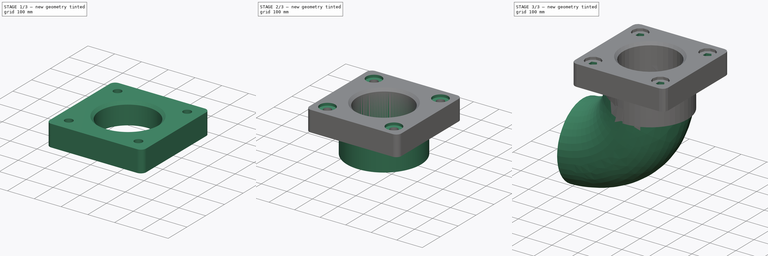
[diagram: build sequence overview — one tinted view per stage of 3, left to right]
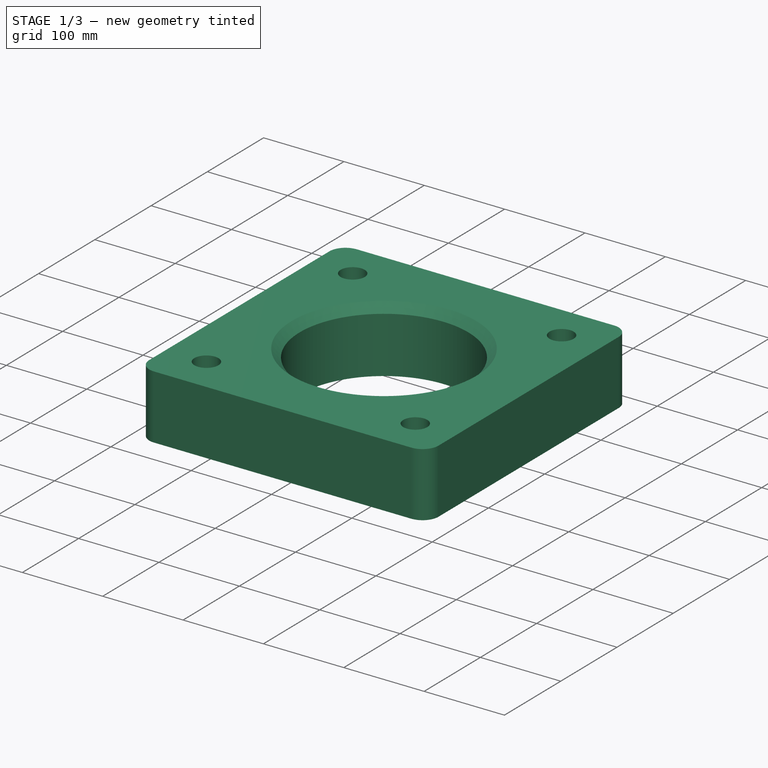
[diagram: stage 1 of 3 — iso view after this stage's code; geometry added in this stage tinted green]
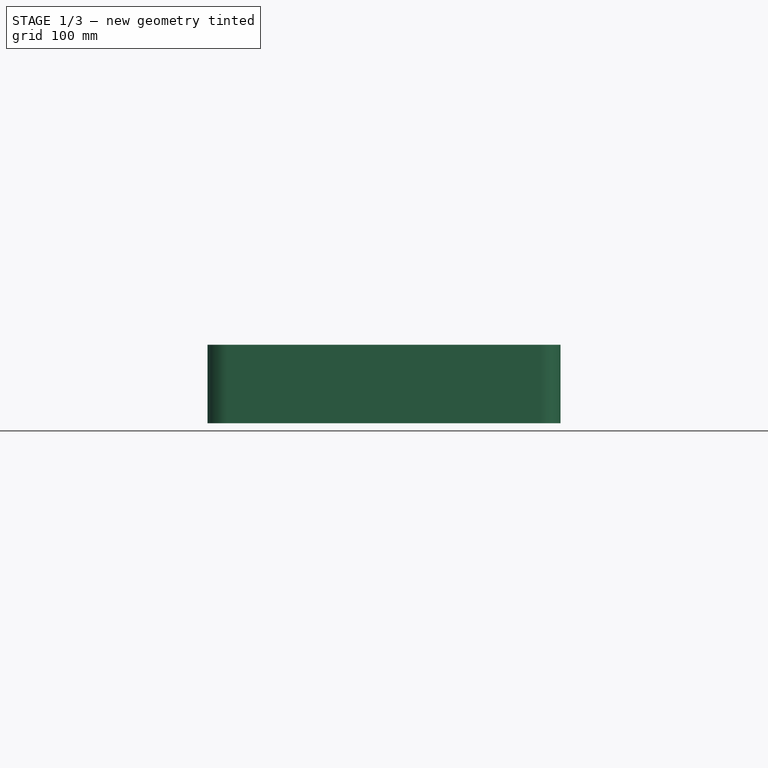
[diagram: stage 1 of 3 — front view after this stage's code; geometry added in this stage tinted green]
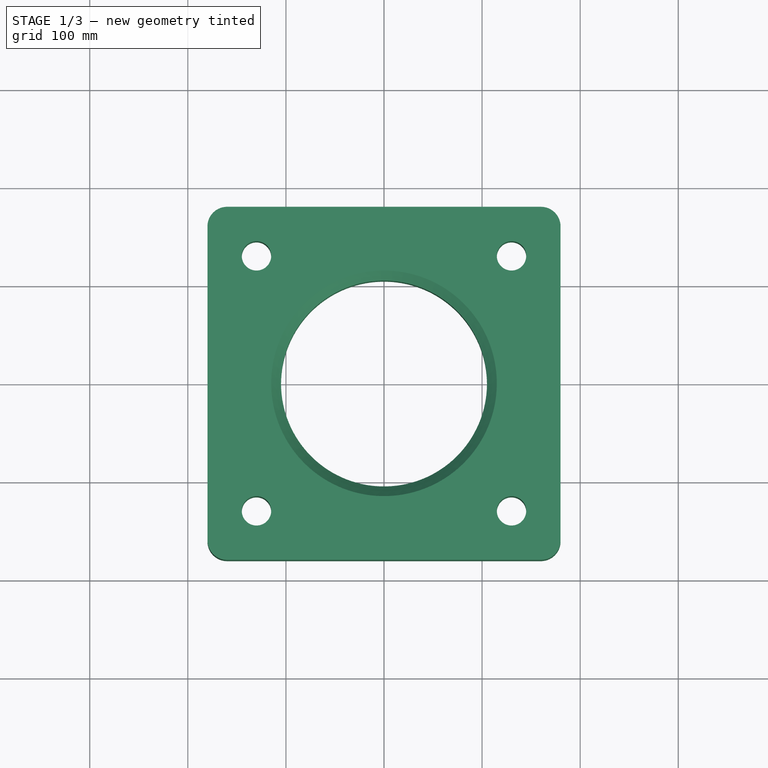
[diagram: stage 1 of 3 — top view after this stage's code; geometry added in this stage tinted green]
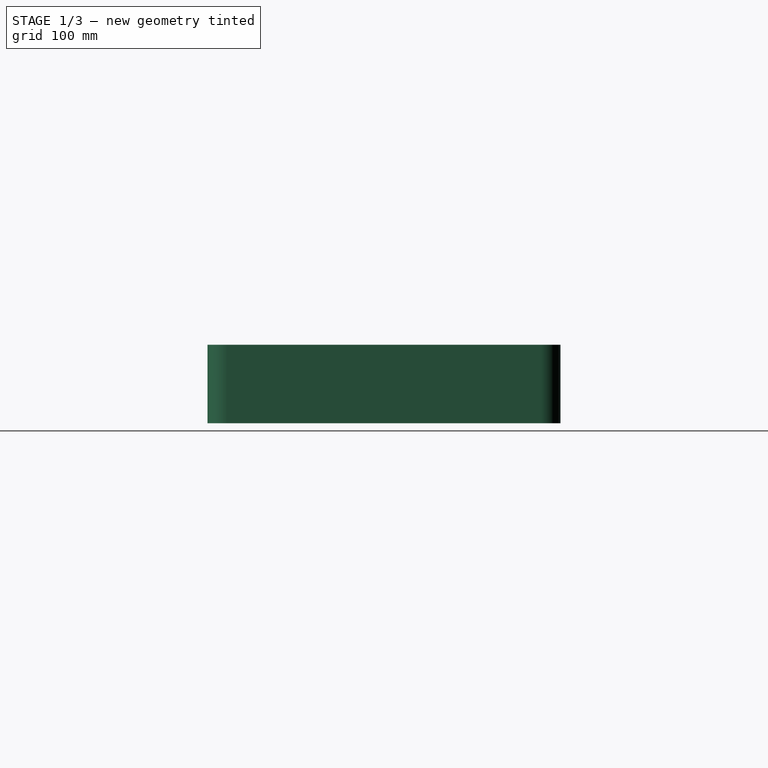
[diagram: stage 1 of 3 — right view after this stage's code; geometry added in this stage tinted green]
FCSTD DOCUMENT  (FreeCAD 1.0R39109 (Git))
Label: pieza2
License: All rights reserved
LicenseURL: https://en.wikipedia.org/wiki/All_rights_reserved
objects: Sketcher::SketchObject×7, PartDesign::Body×3, PartDesign::Pad×2, PartDesign::Chamfer×1, PartDesign::Pocket×1, PartDesign::AdditivePipe×1, PartDesign::FeatureBase×1
note: 34 computed .brp shape members not serialized (recipe doc carries the construction recipe); baked Part::Feature solids carry a one-line shape summary decoded from their .brp

FEATURE [Sketcher::SketchObject] Sketch
  ArcFitTolerance = 1e-06
  AttachmentSupport = -> [XY_Plane]
  FullyConstrained = true
  MakeInternals = false
  MapMode = 5
  sketch-geometry (18):
    g0: LineSegment StartX=-160 StartY=-180 StartZ=0 EndX=160 EndY=-180 EndZ=0
    g1: LineSegment StartX=180 StartY=-160 StartZ=0 EndX=180 EndY=160 EndZ=0
    g2: LineSegment StartX=160 StartY=180 StartZ=0 EndX=-160 EndY=180 EndZ=0
    g3: LineSegment StartX=-180 StartY=160 StartZ=0 EndX=-180 EndY=-160 EndZ=0
    g4: GeomPoint [constr] X=0 Y=0 Z=0
    g5: ArcOfCircle CenterX=-160 CenterY=160 CenterZ=0 NormalX=0 NormalY=0 NormalZ=1 AngleXU=0 Radius=20 StartAngle=1.5708 EndAngle=3.14159
    g6: GeomPoint [constr] X=-180 Y=180 Z=0
    g7: ArcOfCircle CenterX=160 CenterY=160 CenterZ=0 NormalX=0 NormalY=0 NormalZ=1 AngleXU=0 Radius=20 StartAngle=4e-16 EndAngle=1.5708
    g8: GeomPoint [constr] X=180 Y=180 Z=0
    g9: ArcOfCircle CenterX=160 CenterY=-160 CenterZ=0 NormalX=0 NormalY=0 NormalZ=1 AngleXU=0 Radius=20 StartAngle=4.71239 EndAngle=6.28319
    g10: GeomPoint [constr] X=180 Y=-180 Z=0
    g11: ArcOfCircle CenterX=-160 CenterY=-160 CenterZ=0 NormalX=0 NormalY=0 NormalZ=1 AngleXU=0 Radius=20 StartAngle=3.14159 EndAngle=4.71239
    g12: GeomPoint [constr] X=-180 Y=-180 Z=0
    g13: Circle CenterX=-130 CenterY=130 CenterZ=0 NormalX=0 NormalY=0 NormalZ=1 AngleXU=0 Radius=15
    g14: Circle CenterX=130 CenterY=130 CenterZ=0 NormalX=0 NormalY=0 NormalZ=1 AngleXU=0 Radius=15
    g15: Circle CenterX=-130 CenterY=-130 CenterZ=0 NormalX=0 NormalY=0 NormalZ=1 AngleXU=0 Radius=15
    g16: Circle CenterX=130 CenterY=-130 CenterZ=0 NormalX=0 NormalY=0 NormalZ=1 AngleXU=0 Radius=15
    g17: Circle CenterX=0 CenterY=0 CenterZ=0 NormalX=0 NormalY=0 NormalZ=1 AngleXU=0 Radius=105
  constraints (42):
    c: Horizontal(g0)
    c: Horizontal(g2)
    c: Vertical(g1)
    c: Vertical(g3)
    c: Symmetric(g8,g12,g4)
    c: Distance(g10,g12) = 360
    c: Distance(g12,g6) = 360
    c: Coincident(g4,g-1)
    c: PointOnObject(g6,g2)
    c: PointOnObject(g6,g3)
    c: Tangent(g2,g5) = -1.5708
    c: Tangent(g3,g5) = -1.5708
    c: Radius(g5) = 20
    c: PointOnObject(g8,g1)
    c: PointOnObject(g8,g2)
    c: Tangent(g1,g7) = -1.5708
    c: Tangent(g2,g7) = -1.5708
    c: Radius(g7) = 20
    c: PointOnObject(g10,g0)
    c: PointOnObject(g10,g1)
    c: Tangent(g0,g9) = -1.5708
    c: Tangent(g1,g9) = -1.5708
    c: Radius(g9) = 20
    c: PointOnObject(g12,g0)
    c: PointOnObject(g12,g3)
    c: Tangent(g0,g11) = -1.5708
    c: Tangent(g3,g11) = -1.5708
    c: Radius(g11) = 20
    c: Diameter(g13) = 30
    c: DistanceY(g13,g6) = 50
    c: DistanceX(g6,g13) = 50
    c: Diameter(g14) = 30
    c: DistanceX(g14,g8) = 50
    c: DistanceY(g14,g8) = 50
    c: DistanceX(g12,g15) = 50
    c: Diameter(g15) = 30
    c: DistanceY(g12,g15) = 50
    c: DistanceY(g10,g16) = 50
    c: DistanceX(g16,g10) = 50
    c: Diameter(g16) = 30
    c: Diameter(g17) = 210
    c: Coincident(g17,g4)
FEATURE [PartDesign::Pad] Pad
  Direction = (0,0,1)
  Length = 80
  Length2 = 10
  Profile = -> Sketch
  ReferenceAxis = -> Sketch [N_Axis]
  Refine = true
  Suppressed = false
  Type = 0
FEATURE [PartDesign::Chamfer] Chamfer
  Angle = 45
  Base = -> Pad [Edge27]
  BaseFeature = -> Pad
  ChamferType = 0
  FlipDirection = false
  Refine = true
  Size = 10
  Size2 = 1
  SupportTransform = false
  Suppressed = false
  UseAllEdges = false
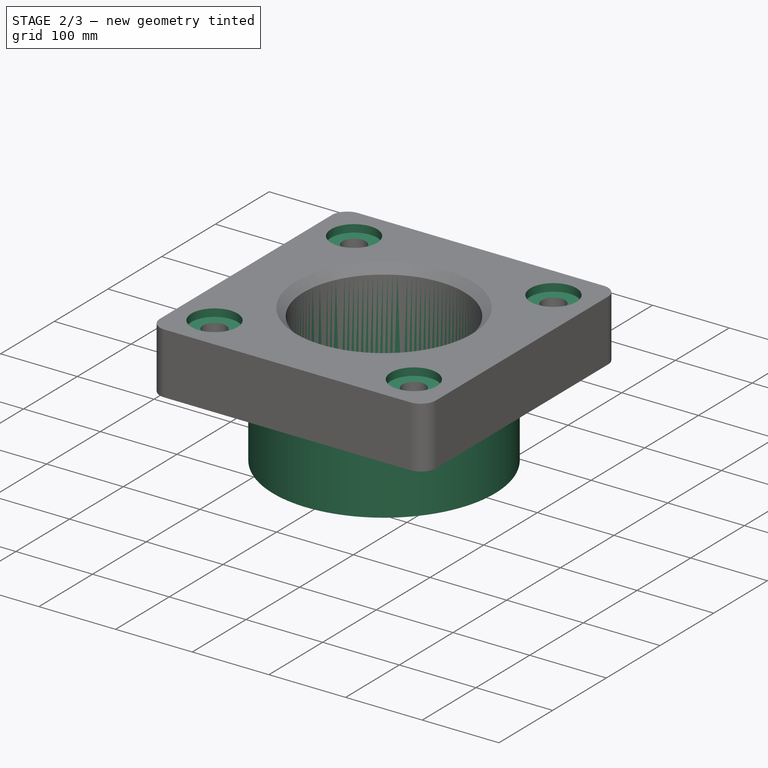
[diagram: stage 2 of 3 — iso view after this stage's code; geometry added in this stage tinted green]
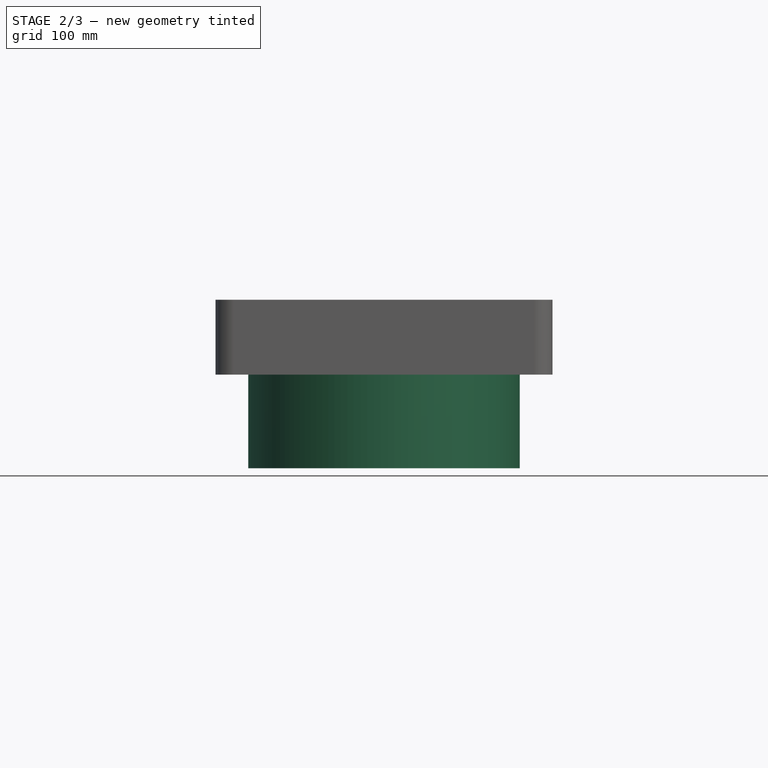
[diagram: stage 2 of 3 — front view after this stage's code; geometry added in this stage tinted green]
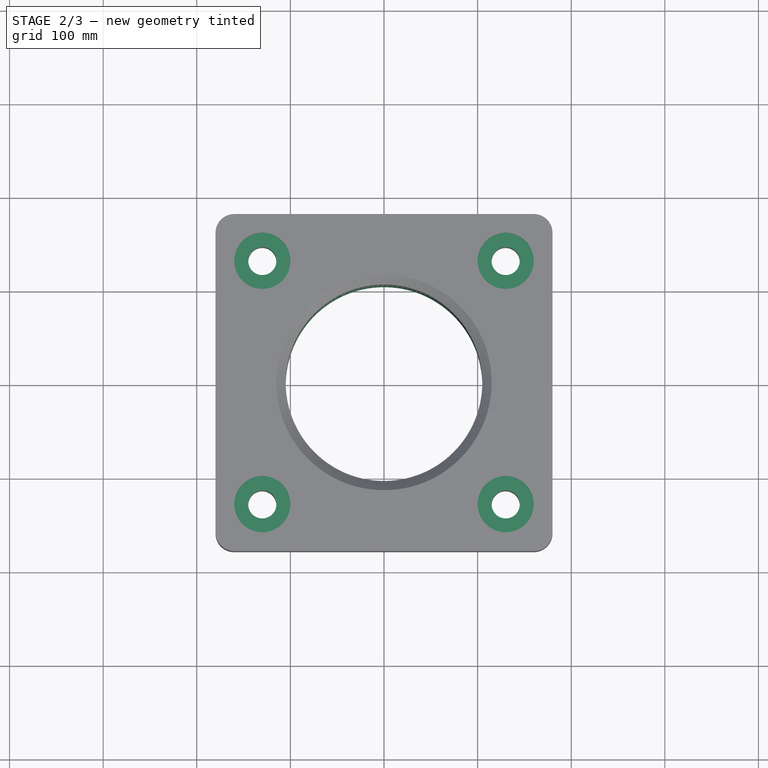
[diagram: stage 2 of 3 — top view after this stage's code; geometry added in this stage tinted green]
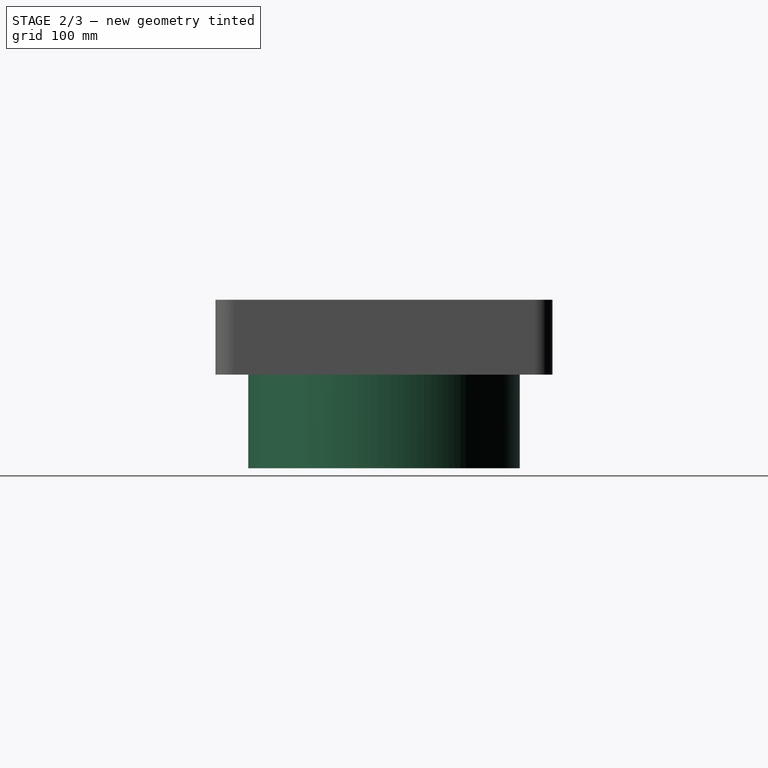
[diagram: stage 2 of 3 — right view after this stage's code; geometry added in this stage tinted green]
FEATURE [Sketcher::SketchObject] Sketch001
  ArcFitTolerance = 1e-06
  AttachmentSupport = -> [Chamfer]
  ExternalGeometry = -> [Chamfer]
  FullyConstrained = true
  MakeInternals = false
  MapMode = 5
  Placement = pos=(0,0,80) rot=(0,0,1;0rad)
FEATURE [Sketcher::SketchObject] Sketch002
  ArcFitTolerance = 1e-06
  AttachmentSupport = -> [Chamfer]
  ExternalGeometry = -> [Chamfer]
  FullyConstrained = true
  MakeInternals = false
  MapMode = 5
  Placement = pos=(0,0,80) rot=(0,0,1;0rad)
  sketch-geometry (4):
    g0: Circle CenterX=-130 CenterY=130 CenterZ=0 NormalX=0 NormalY=0 NormalZ=1 AngleXU=0 Radius=30
    g1: Circle CenterX=130 CenterY=130 CenterZ=0 NormalX=0 NormalY=0 NormalZ=1 AngleXU=0 Radius=30
    g2: Circle CenterX=130 CenterY=-130 CenterZ=0 NormalX=0 NormalY=0 NormalZ=1 AngleXU=0 Radius=30
    g3: Circle CenterX=-130 CenterY=-130 CenterZ=0 NormalX=0 NormalY=0 NormalZ=1 AngleXU=0 Radius=30
  constraints (8):
    c: Diameter(g0) = 60
    c: Coincident(g0,g-3)
    c: Diameter(g1) = 60
    c: Coincident(g1,g-4)
    c: Diameter(g2) = 60
    c: Coincident(g2,g-5)
    c: Diameter(g3) = 60
    c: Coincident(g3,g-6)
FEATURE [PartDesign::Pocket] Pocket
  BaseFeature = -> Chamfer
  Direction = (0,0,-1)
  Length = 10
  Length2 = 5
  Profile = -> Sketch002
  ReferenceAxis = -> Sketch002 [N_Axis]
  Refine = true
  Suppressed = false
  Type = 0
FEATURE [Sketcher::SketchObject] Sketch003
  ArcFitTolerance = 1e-06
  AttachmentSupport = -> [Pocket]
  FullyConstrained = true
  MakeInternals = false
  MapMode = 5
  Placement = pos=(0,0,0) rot=(1,0,0;3.14159rad)
  sketch-geometry (2):
    g0: Circle CenterX=0 CenterY=0 CenterZ=0 NormalX=0 NormalY=0 NormalZ=1 AngleXU=0 Radius=145
    g1: Circle CenterX=0 CenterY=0 CenterZ=0 NormalX=0 NormalY=0 NormalZ=1 AngleXU=0 Radius=105
  constraints (4):
    c: Diameter(g0) = 290
    c: Coincident(g0,g-1)
    c: Diameter(g1) = 210
    c: Coincident(g1,g0)
FEATURE [PartDesign::Pad] Pad001
  BaseFeature = -> Pocket
  Direction = (0,0,-1)
  Length = 100
  Length2 = 10
  Profile = -> Sketch003
  ReferenceAxis = -> Sketch003 [N_Axis]
  Refine = true
  Suppressed = false
  Type = 0
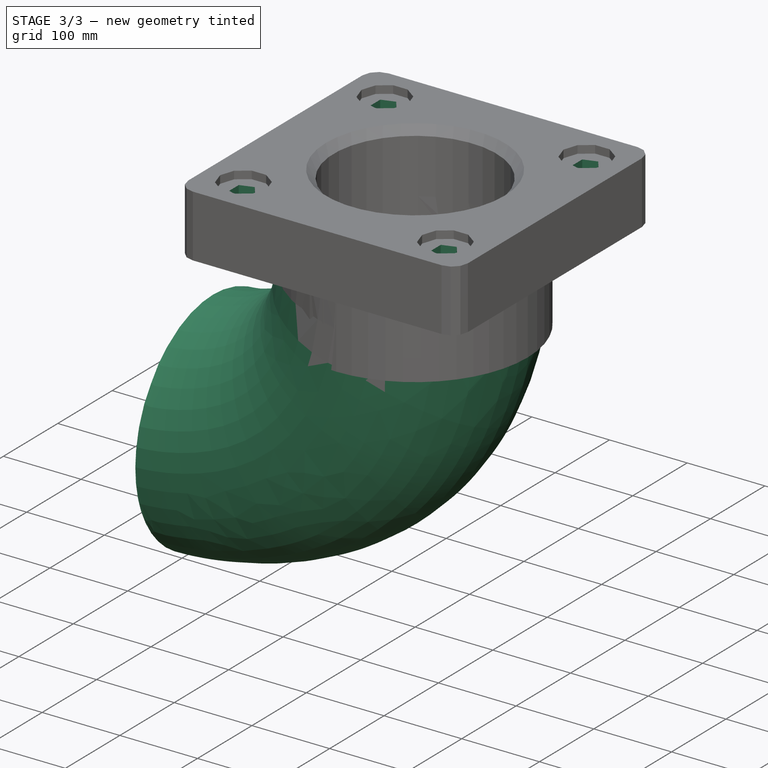
[diagram: stage 3 of 3 — iso view after this stage's code; geometry added in this stage tinted green]
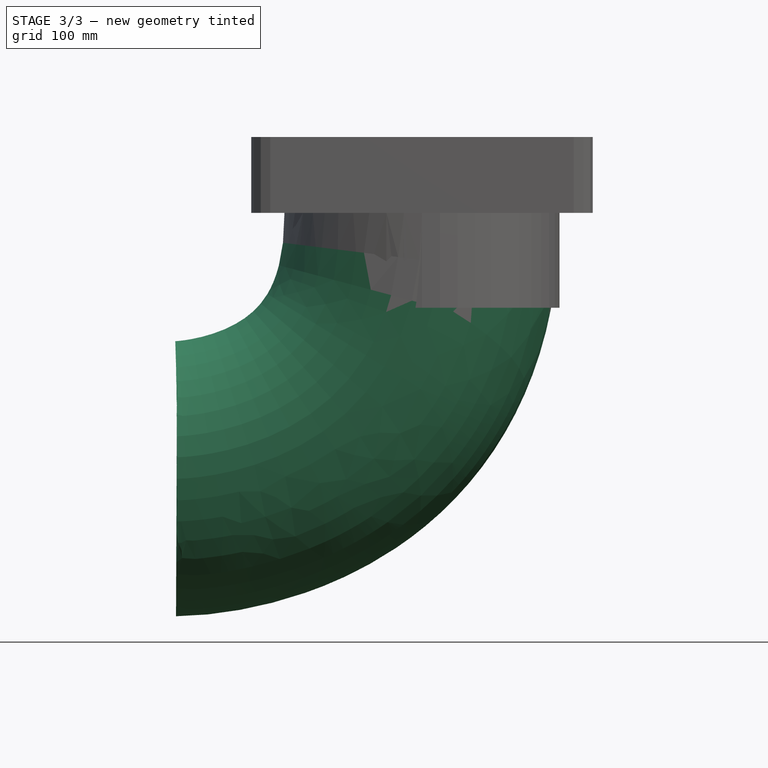
[diagram: stage 3 of 3 — front view after this stage's code; geometry added in this stage tinted green]
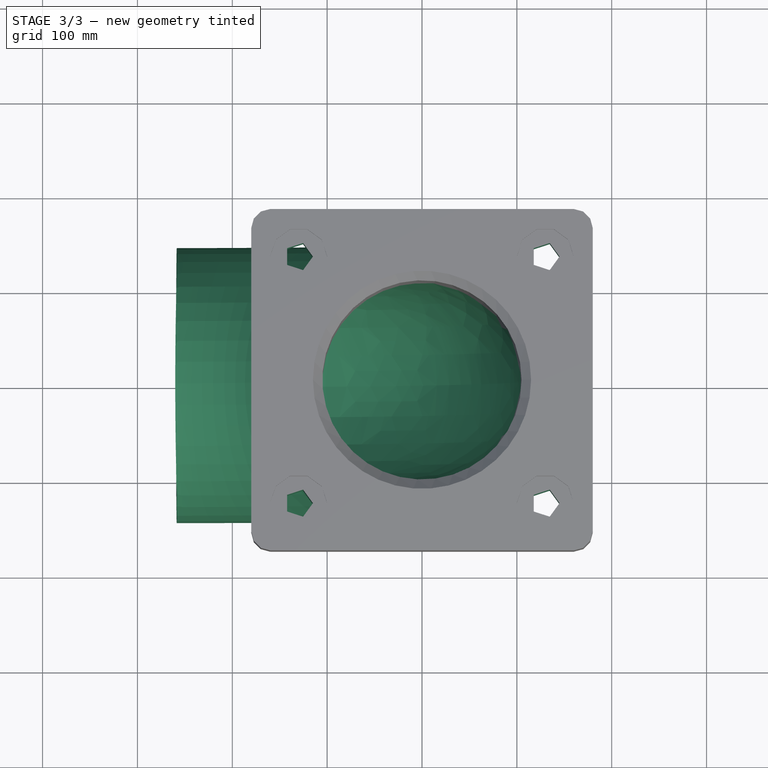
[diagram: stage 3 of 3 — top view after this stage's code; geometry added in this stage tinted green]
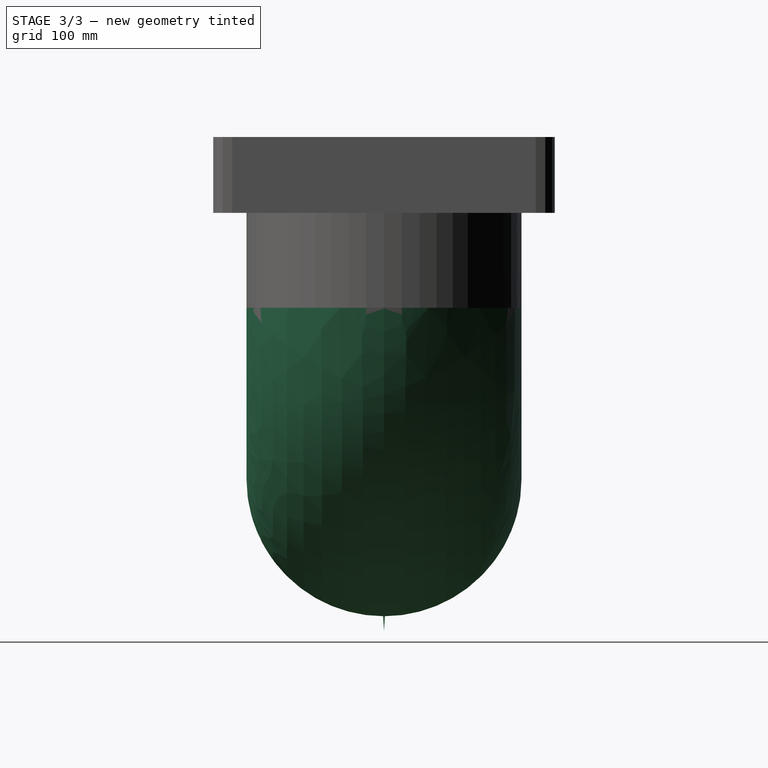
[diagram: stage 3 of 3 — right view after this stage's code; geometry added in this stage tinted green]
FEATURE [Sketcher::SketchObject] Sketch004
  ArcFitTolerance = 1e-06
  AttachmentSupport = -> [Pad001]
  FullyConstrained = true
  MakeInternals = false
  MapMode = 5
  Placement = pos=(0,0,-100) rot=(1,0,0;3.14159rad)
  sketch-geometry (1):
    g0: Circle CenterX=0 CenterY=0 CenterZ=0 NormalX=0 NormalY=0 NormalZ=1 AngleXU=0 Radius=105
  constraints (2):
    c: Diameter(g0) = 210
    c: Coincident(g0,g-1)
FEATURE [PartDesign::Body] Body  label="Cuerpo"
  AllowCompound = false
  Group = -> [Sketch,Pad,Chamfer,Sketch001,Sketch002,Pocket,Sketch003,Pad001,Sketch004]
  Origin = -> Origin
  Tip = -> Pad001
FEATURE [Sketcher::SketchObject] Sketch005
  ArcFitTolerance = 1e-06
  AttachmentSupport = -> [XY_Plane001]
  FullyConstrained = false
  MakeInternals = false
  MapMode = 5
  sketch-geometry (2):
    g0: Circle CenterX=0 CenterY=0 CenterZ=0 NormalX=0 NormalY=0 NormalZ=1 AngleXU=0 Radius=145
    g1: Circle CenterX=0 CenterY=0 CenterZ=0 NormalX=0 NormalY=0 NormalZ=1 AngleXU=0 Radius=105
  constraints (3):
    c: Diameter(g0) = 290
    c: Diameter(g1) = 210
    c: Coincident(g1,g0)
FEATURE [Sketcher::SketchObject] Sketch006
  ArcFitTolerance = 1e-06
  AttachmentSupport = -> [XZ_Plane001]
  FullyConstrained = false
  MakeInternals = false
  MapMode = 5
  Placement = pos=(0,0,0) rot=(1,0,0;1.5708rad)
  sketch-geometry (7):
    g0-g3: Circle [constr] x4 (B-spline internal-alignment scaffolding for g4; pole/knot coordinates omitted)
    g4: BSplineCurve PolesCount=4 KnotsCount=2 Degree=3 IsPeriodic=0
    g5: GeomPoint [constr] X=0 Y=0 Z=0
    g6: GeomPoint [constr] X=-258.566 Y=-280.306 Z=0
  constraints (10):
    c: Weight(g0) = 1
    c: Equal(g0,g1)
    c: Equal(g0,g2)
    c: Equal(g0,g3)
    c: InternalAlignment(g0-g3 -> g4) x4
    c: InternalAlignment(g5,g4)
    c: InternalAlignment(g6,g4)
    c: Distance(g1,g2) = 260
    c: Coincident(g0,g-1)
    c: Coincident(g3,g2)
FEATURE [PartDesign::AdditivePipe] AdditivePipe
  AuxilleryCurvelinear = true
  AuxillerySpineTangent = false
  Binormal = (0,0,0)
  Mode = 0
  Profile = -> Sketch005
  Refine = true
  Spine = -> Sketch006
  SpineTangent = false
  Suppressed = false
  Transformation = 0
  Transition = 0
FEATURE [PartDesign::Body] Body001  label="Cuerpo001"
  AllowCompound = false
  Group = -> [Sketch005,Sketch006,AdditivePipe]
  Origin = -> Origin001
  Placement = pos=(0,0,-100) rot=(0,0,1;0rad)
  Tip = -> AdditivePipe
FEATURE [PartDesign::FeatureBase] Clone
  BaseFeature = -> Body
  Suppressed = false
FEATURE [PartDesign::Body] Body002
  AllowCompound = false
  Group = -> [Clone]
  Origin = -> Origin002
  Placement = pos=(-359,0,-380) rot=(0,-1,0;1.5708rad)
  Tip = -> Clone
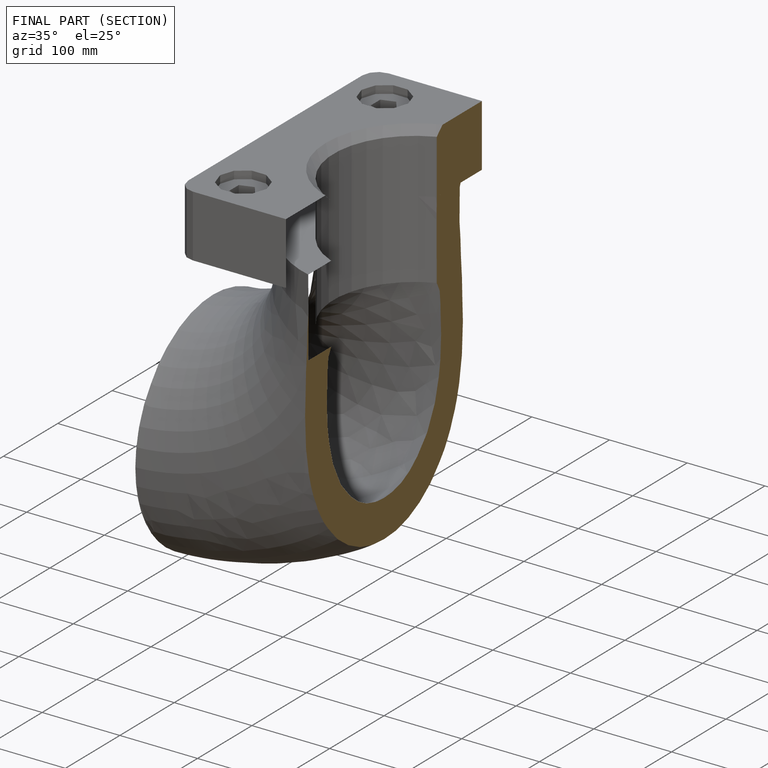
[diagram: finished part — half-section view (interior)]
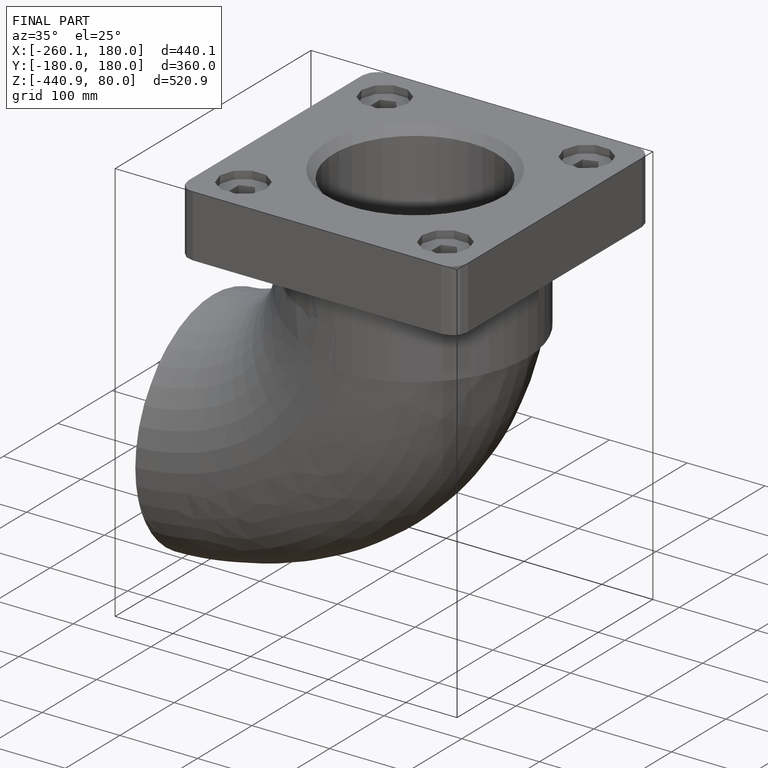
[diagram: finished part — iso view with bounding-box wireframe]
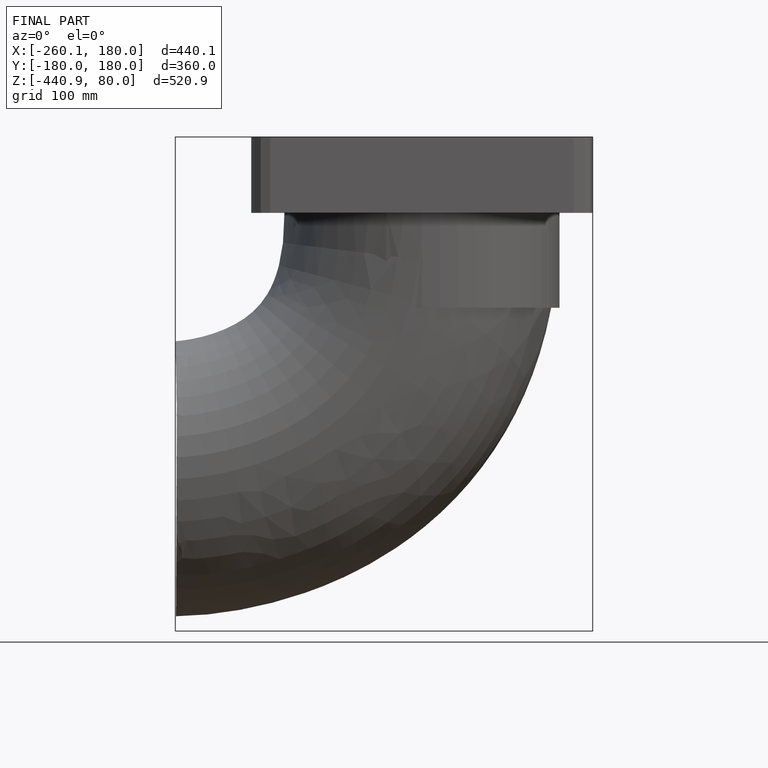
[diagram: finished part — front view with bounding-box wireframe]
